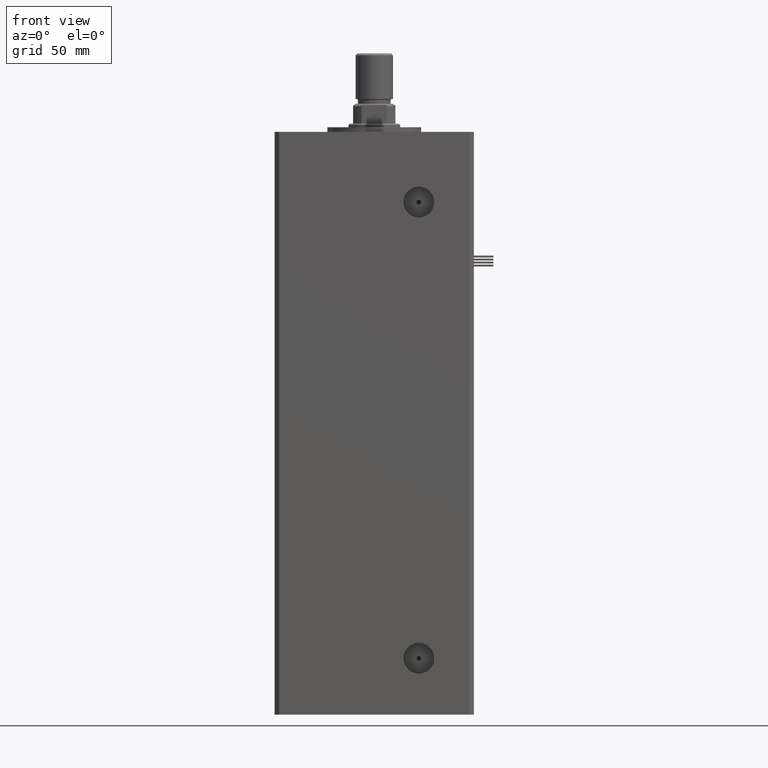
[diagram: clean part render]
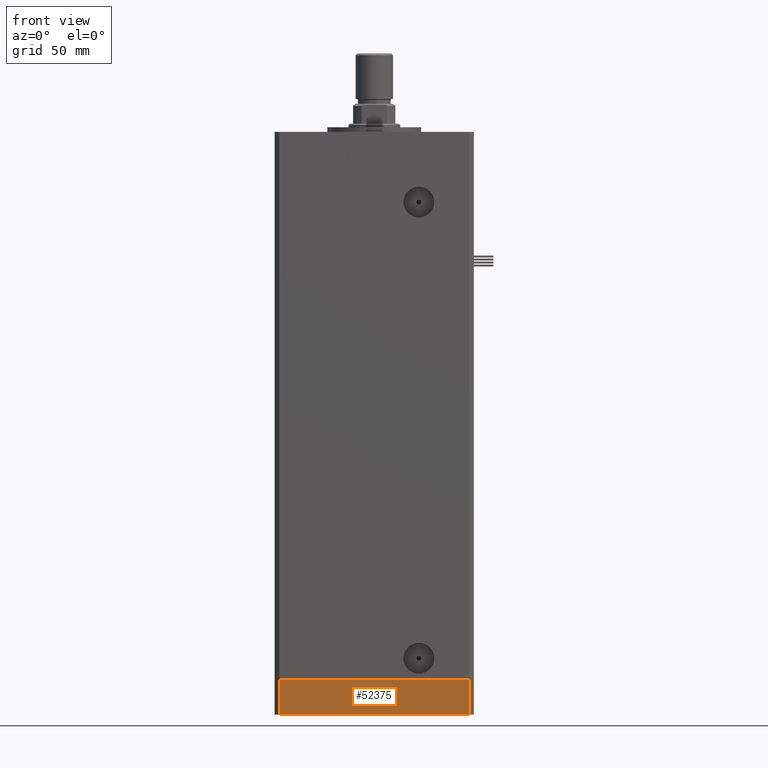
[diagram: same view with one face highlighted and labeled with its STEP entity id]
A machine part, front view. The second image highlights one B-rep face of the part: STEP entity #52375.
In plain terms, the highlighted planar face has unit normal (-0, -1, -0).
Its self-contained STEP definition (entity closure, byte-faithful):
#2838 = VERTEX_POINT ( 'NONE', #34723 ) ;
#6136 = VECTOR ( 'NONE', #7995, 1000.000000000000000 ) ;
#6330 = LINE ( 'NONE', #40109, #47697 ) ;
#7995 = DIRECTION ( 'NONE',  ( 0.000000000000000000, 0.000000000000000000, 1.000000000000000000 ) ) ;
#8157 = CARTESIAN_POINT ( 'NONE',  ( -40.49999999999999289, -37.50000000000002132, -15.00000000000000000 ) ) ;
#9086 = LINE ( 'NONE', #26246, #42209 ) ;
#12769 = CARTESIAN_POINT ( 'NONE',  ( 40.50000000000000000, -37.50000000000000711, -15.00000000000000000 ) ) ;
#13861 = DIRECTION ( 'NONE',  ( 1.000000000000000000, 1.713307136767217096E-16, 0.000000000000000000 ) ) ;
#15693 = ORIENTED_EDGE ( 'NONE', *, *, #31331, .T. ) ;
#22426 = ORIENTED_EDGE ( 'NONE', *, *, #31358, .F. ) ;
#22964 = VERTEX_POINT ( 'NONE', #30386 ) ;
#23352 = EDGE_CURVE ( 'NONE', #50004, #22964, #6330, .T. ) ;
#25170 = DIRECTION ( 'NONE',  ( 0.000000000000000000, 0.000000000000000000, 1.000000000000000000 ) ) ;
#26246 = CARTESIAN_POINT ( 'NONE',  ( -40.49999999999999289, -37.50000000000002132, 0.000000000000000000 ) ) ;
#28865 = CARTESIAN_POINT ( 'NONE',  ( 40.50000000000000000, -37.50000000000000711, 0.000000000000000000 ) ) ;
#29926 = LINE ( 'NONE', #12769, #6136 ) ;
#30386 = CARTESIAN_POINT ( 'NONE',  ( 40.50000000000000000, -37.50000000000000711, -15.00000000000000000 ) ) ;
#31303 = VECTOR ( 'NONE', #25170, 1000.000000000000000 ) ;
#31331 = EDGE_CURVE ( 'NONE', #22964, #39825, #29926, .T. ) ;
#31358 = EDGE_CURVE ( 'NONE', #50004, #2838, #34424, .T. ) ;
#31580 = CARTESIAN_POINT ( 'NONE',  ( -40.49999999999999289, -37.50000000000002132, -15.00000000000000000 ) ) ;
#32139 = FACE_OUTER_BOUND ( 'NONE', #35506, .T. ) ;
#33953 = EDGE_CURVE ( 'NONE', #2838, #39825, #9086, .T. ) ;
#34151 = CARTESIAN_POINT ( 'NONE',  ( -40.49999999999999289, -37.50000000000002132, -15.00000000000000000 ) ) ;
#34424 = LINE ( 'NONE', #34151, #31303 ) ;
#34723 = CARTESIAN_POINT ( 'NONE',  ( -40.49999999999999289, -37.50000000000002132, 0.000000000000000000 ) ) ;
#35506 = EDGE_LOOP ( 'NONE', ( #50746, #22426, #36404, #15693 ) ) ;
#36404 = ORIENTED_EDGE ( 'NONE', *, *, #23352, .T. ) ;
#39825 = VERTEX_POINT ( 'NONE', #28865 ) ;
#40109 = CARTESIAN_POINT ( 'NONE',  ( -40.49999999999999289, -37.50000000000002132, -15.00000000000000000 ) ) ;
#42209 = VECTOR ( 'NONE', #13861, 1000.000000000000000 ) ;
#44603 = DIRECTION ( 'NONE',  ( 1.000000000000000000, 1.713307136767217096E-16, 0.000000000000000000 ) ) ;
#45081 = DIRECTION ( 'NONE',  ( 1.000000000000000000, 1.713307136767217096E-16, 0.000000000000000000 ) ) ;
#47697 = VECTOR ( 'NONE', #44603, 1000.000000000000000 ) ;
#49320 = DIRECTION ( 'NONE',  ( 1.713307136767217096E-16, -1.000000000000000000, 0.000000000000000000 ) ) ;
#49865 = AXIS2_PLACEMENT_3D ( 'NONE', #31580, #49320, #45081 ) ;
#50004 = VERTEX_POINT ( 'NONE', #8157 ) ;
#50746 = ORIENTED_EDGE ( 'NONE', *, *, #33953, .F. ) ;
#52375 = ADVANCED_FACE ( 'NONE', ( #32139 ), #52702, .T. ) ;
#52702 = PLANE ( 'NONE',  #49865 ) ;